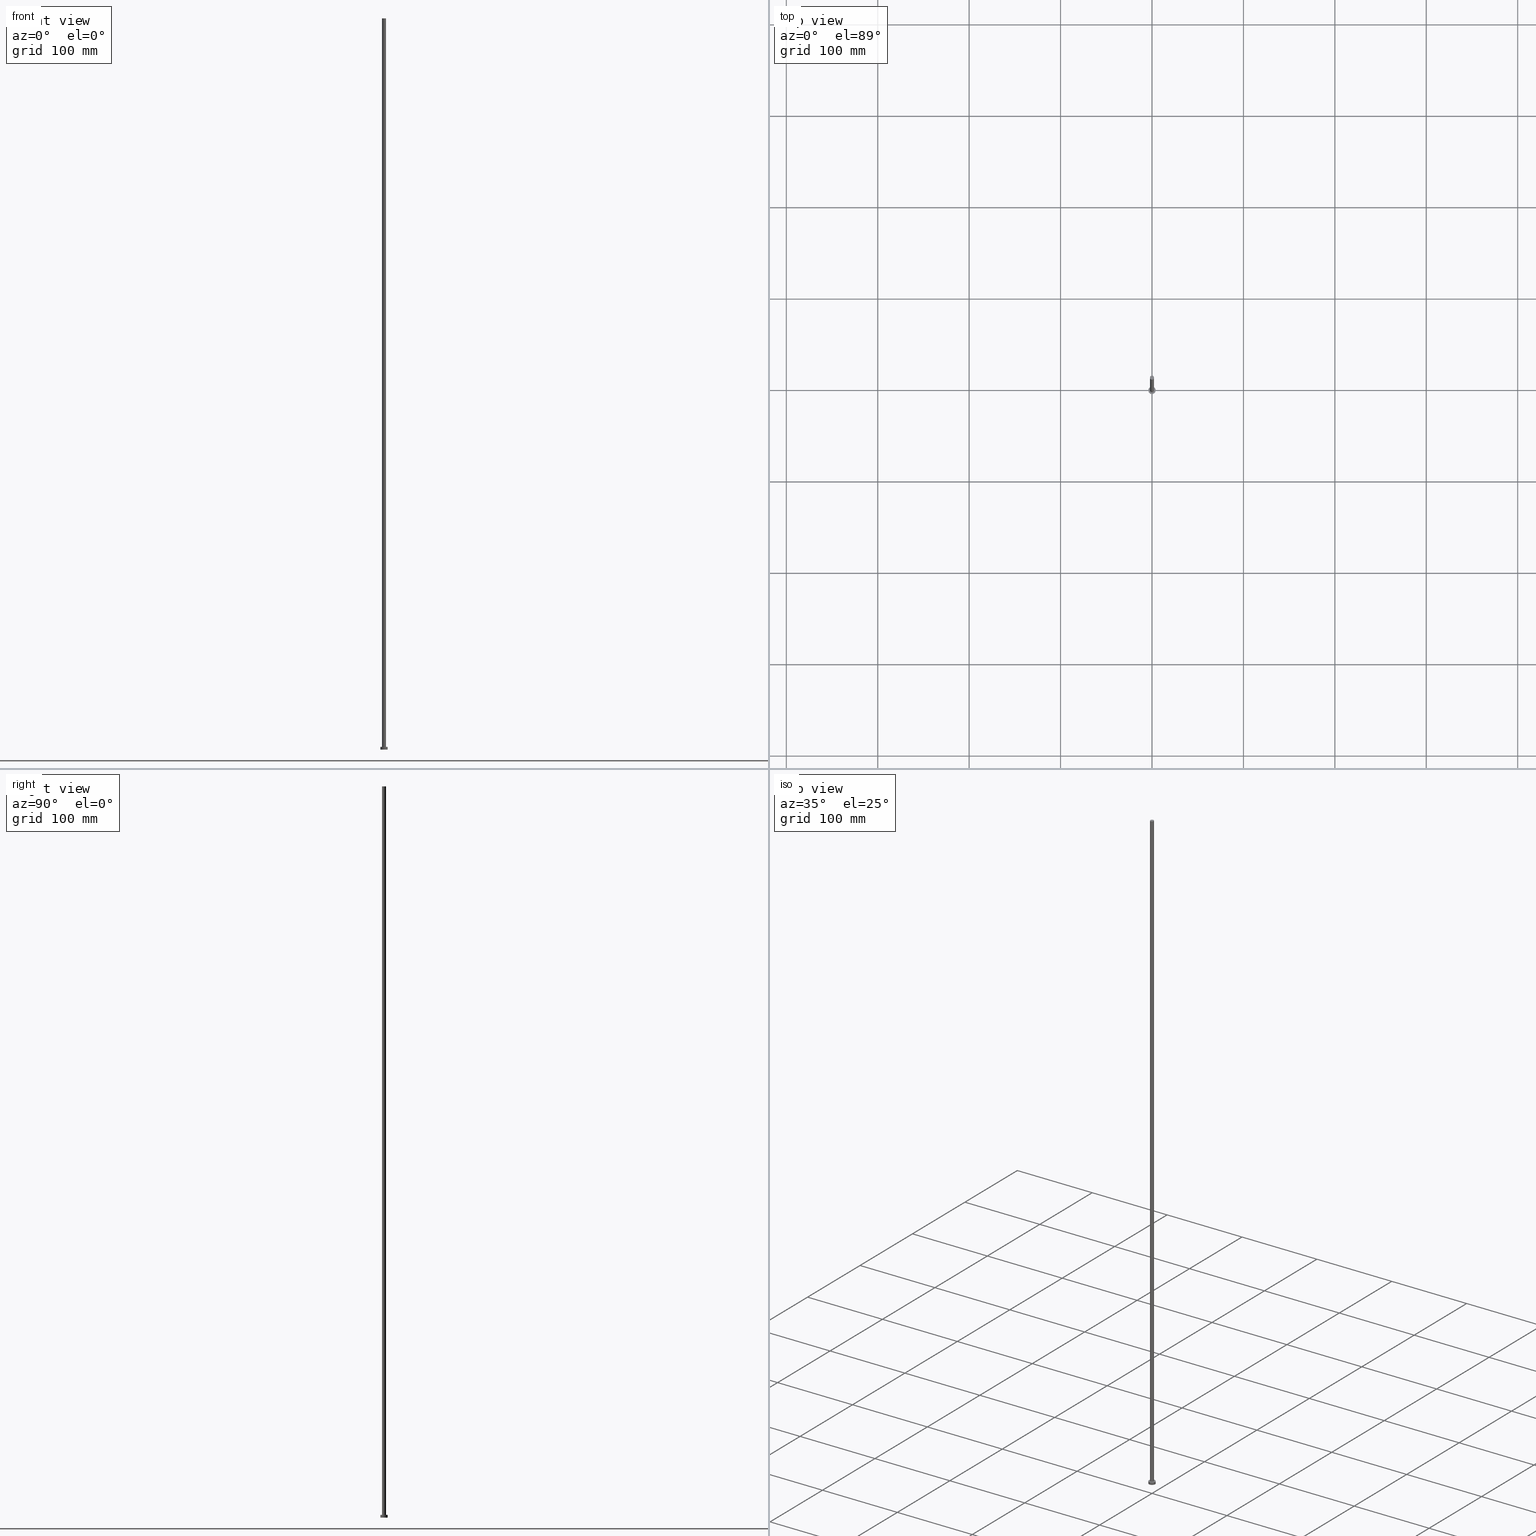
[diagram: canonical four-view strip — front | top / right | iso, engineering-drawing reading convention]
A machine part, canonical four-view strip (front | top / right | iso — engineering-drawing reading convention). The complete STEP part file that produces these views, byte-faithful:
ISO-10303-21;
HEADER;
FILE_DESCRIPTION (( 'STEP AP203' ),
    '1' );
FILE_NAME ('bdc4.STEP',
    '2023-02-12T12:32:07',
    ( '' ),
    ( '' ),
    'SwSTEP 2.0',
    'SolidWorks 2019',
    '' );
FILE_SCHEMA (( 'CONFIG_CONTROL_DESIGN' ));
ENDSEC;

DATA;
#1 = LINE ( 'NONE', #220, #40 ) ;
#2 = EDGE_LOOP ( 'NONE', ( #212, #138 ) ) ;
#3 = COORDINATED_UNIVERSAL_TIME_OFFSET ( 1, 0, .AHEAD. ) ;
#4 = CARTESIAN_POINT ( 'NONE',  ( 2.250000000000000000, 2.755455298081544285E-16, 800.0000000000000000 ) ) ;
#5 = ADVANCED_FACE ( 'NONE', ( #31 ), #196, .T. ) ;
#6 = DIRECTION ( 'NONE',  ( 0.000000000000000000, 0.000000000000000000, 1.000000000000000000 ) ) ;
#7 = CIRCLE ( 'NONE', #174, 2.250000000000000000 ) ;
#8 = CC_DESIGN_APPROVAL ( #57, ( #98 ) ) ;
#9 = CARTESIAN_POINT ( 'NONE',  ( 0.000000000000000000, 0.000000000000000000, 0.000000000000000000 ) ) ;
#10 = EDGE_LOOP ( 'NONE', ( #19, #83, #251, #131 ) ) ;
#11 = CALENDAR_DATE ( 2023, 12, 2 ) ;
#12 = ADVANCED_FACE ( 'NONE', ( #254 ), #32, .T. ) ;
#13 = CARTESIAN_POINT ( 'NONE',  ( 0.000000000000000000, 0.000000000000000000, 3.000000000000000000 ) ) ;
#14 = CARTESIAN_POINT ( 'NONE',  ( 2.250000000000000000, 2.755455298081544285E-16, 800.0000000000000000 ) ) ;
#15 = MECHANICAL_CONTEXT ( 'NONE', #64, 'mechanical' ) ;
#16 = SHAPE_DEFINITION_REPRESENTATION ( #143, #69 ) ;
#17 = FACE_OUTER_BOUND ( 'NONE', #134, .T. ) ;
#18 = ORIENTED_EDGE ( 'NONE', *, *, #49, .F. ) ;
#19 = ORIENTED_EDGE ( 'NONE', *, *, #189, .F. ) ;
#20 = CARTESIAN_POINT ( 'NONE',  ( 0.000000000000000000, 0.000000000000000000, 800.0000000000000000 ) ) ;
#21 = CIRCLE ( 'NONE', #213, 4.000000000000000000 ) ;
#22 = APPROVAL_PERSON_ORGANIZATION ( #152, #57, #53 ) ;
#23 = APPLICATION_PROTOCOL_DEFINITION ( 'international standard', 'config_control_design', 1994, #72 ) ;
#24 = EDGE_CURVE ( 'NONE', #122, #146, #1, .T. ) ;
#25 = VECTOR ( 'NONE', #223, 1000.000000000000000 ) ;
#26 = DIRECTION ( 'NONE',  ( -0.000000000000000000, -0.000000000000000000, -1.000000000000000000 ) ) ;
#27 = DIRECTION ( 'NONE',  ( 1.000000000000000000, 0.000000000000000000, 0.000000000000000000 ) ) ;
#28 = APPROVAL_DATE_TIME ( #193, #29 ) ;
#29 = APPROVAL ( #230, 'NEUR�EN�' ) ;
#30 = DIRECTION ( 'NONE',  ( 1.000000000000000000, 0.000000000000000000, 0.000000000000000000 ) ) ;
#31 = FACE_OUTER_BOUND ( 'NONE', #2, .T. ) ;
#32 = CYLINDRICAL_SURFACE ( 'NONE', #126, 2.250000000000000000 ) ;
#33 = APPROVAL_DATE_TIME ( #165, #179 ) ;
#34 = ADVANCED_FACE ( 'NONE', ( #166 ), #108, .T. ) ;
#35 = VERTEX_POINT ( 'NONE', #14 ) ;
#36 = CYLINDRICAL_SURFACE ( 'NONE', #169, 2.250000000000000000 ) ;
#37 = EDGE_CURVE ( 'NONE', #146, #127, #21, .T. ) ;
#38 = PERSON_AND_ORGANIZATION_ROLE ( 'design_owner' ) ;
#39 = DIRECTION ( 'NONE',  ( 0.000000000000000000, 0.000000000000000000, 1.000000000000000000 ) ) ;
#40 = VECTOR ( 'NONE', #232, 1000.000000000000000 ) ;
#41 = CC_DESIGN_SECURITY_CLASSIFICATION ( #158, ( #204 ) ) ;
#42 = LINE ( 'NONE', #123, #25 ) ;
#43 = PERSON ( 'NEUR�EN�', 'NEUR�EN�', 'NEUR�EN�', ('NEUR�EN�'), ('NEUR�EN�'), ('NEUR�EN�') ) ;
#44 = ADVANCED_FACE ( 'NONE', ( #154, #17 ), #187, .T. ) ;
#45 = ORIENTED_EDGE ( 'NONE', *, *, #207, .F. ) ;
#46 = CARTESIAN_POINT ( 'NONE',  ( 0.000000000000000000, 0.000000000000000000, 3.000000000000000000 ) ) ;
#47 = ORGANIZATION ( 'NEUR�EN�', 'NEUR�EN�', '' ) ;
#48 = DIRECTION ( 'NONE',  ( -1.000000000000000000, 0.000000000000000000, 0.000000000000000000 ) ) ;
#49 = EDGE_CURVE ( 'NONE', #122, #205, #121, .T. ) ;
#50 = DIRECTION ( 'NONE',  ( 1.000000000000000000, 0.000000000000000000, 0.000000000000000000 ) ) ;
#51 = ORIENTED_EDGE ( 'NONE', *, *, #49, .T. ) ;
#52 = APPROVAL_DATE_TIME ( #71, #57 ) ;
#53 = APPROVAL_ROLE ( '' ) ;
#54 = CIRCLE ( 'NONE', #199, 2.250000000000000000 ) ;
#55 = EDGE_CURVE ( 'NONE', #127, #146, #198, .T. ) ;
#56 = CC_DESIGN_APPROVAL ( #179, ( #204 ) ) ;
#57 = APPROVAL ( #225, 'NEUR�EN�' ) ;
#58 = PERSON_AND_ORGANIZATION_ROLE ( 'creator' ) ;
#59 = DIRECTION ( 'NONE',  ( 1.000000000000000000, 0.000000000000000000, 0.000000000000000000 ) ) ;
#60 = LOCAL_TIME ( 13, 32, 7.000000000000000000, #109 ) ;
#61 = DIRECTION ( 'NONE',  ( 0.000000000000000000, 0.000000000000000000, 1.000000000000000000 ) ) ;
#62 = CARTESIAN_POINT ( 'NONE',  ( 4.000000000000000000, 4.898587196589412829E-16, 0.000000000000000000 ) ) ;
#63 = DIRECTION ( 'NONE',  ( -0.000000000000000000, -0.000000000000000000, -1.000000000000000000 ) ) ;
#64 = APPLICATION_CONTEXT ( 'configuration controlled 3d designs of mechanical parts and assemblies' ) ;
#65 = ADVANCED_FACE ( 'NONE', ( #101 ), #36, .T. ) ;
#66 = PERSON_AND_ORGANIZATION ( #43, #47 ) ;
#67 = AXIS2_PLACEMENT_3D ( 'NONE', #209, #26, #224 ) ;
#68 = ORIENTED_EDGE ( 'NONE', *, *, #117, .F. ) ;
#69 = ADVANCED_BREP_SHAPE_REPRESENTATION ( 'bdc4', ( #177, #208 ), #170 ) ;
#70 = PLANE ( 'NONE',  #93 ) ;
#71 = DATE_AND_TIME ( #11, #228 ) ;
#72 = APPLICATION_CONTEXT ( 'configuration controlled 3d designs of mechanical parts and assemblies' ) ;
#73 = CALENDAR_DATE ( 2023, 12, 2 ) ;
#74 = DIRECTION ( 'NONE',  ( 0.000000000000000000, 0.000000000000000000, 1.000000000000000000 ) ) ;
#75 = DIRECTION ( 'NONE',  ( 0.000000000000000000, 0.000000000000000000, 1.000000000000000000 ) ) ;
#76 = LOCAL_TIME ( 13, 32, 7.000000000000000000, #95 ) ;
#77 = CC_DESIGN_PERSON_AND_ORGANIZATION_ASSIGNMENT ( #111, #211, ( #158 ) ) ;
#78 = AXIS2_PLACEMENT_3D ( 'NONE', #192, #74, #157 ) ;
#79 = CYLINDRICAL_SURFACE ( 'NONE', #156, 4.000000000000000000 ) ;
#80 = PRODUCT_RELATED_PRODUCT_CATEGORY ( 'detail', '', ( #129 ) ) ;
#81 = ORIENTED_EDGE ( 'NONE', *, *, #24, .T. ) ;
#82 = DIRECTION ( 'NONE',  ( -0.000000000000000000, -0.000000000000000000, -1.000000000000000000 ) ) ;
#83 = ORIENTED_EDGE ( 'NONE', *, *, #125, .T. ) ;
#84 = AXIS2_PLACEMENT_3D ( 'NONE', #178, #61, #160 ) ;
#85 = CARTESIAN_POINT ( 'NONE',  ( 0.000000000000000000, 0.000000000000000000, 0.000000000000000000 ) ) ;
#86 = EDGE_LOOP ( 'NONE', ( #140, #124, #235, #242 ) ) ;
#87 = APPLICATION_PROTOCOL_DEFINITION ( 'international standard', 'config_control_design', 1994, #64 ) ;
#88 = DESIGN_CONTEXT ( 'detailed design', #72, 'design' ) ;
#89 = EDGE_LOOP ( 'NONE', ( #68, #219, #222, #197 ) ) ;
#90 = CALENDAR_DATE ( 2023, 12, 2 ) ;
#91 =( LENGTH_UNIT ( ) NAMED_UNIT ( * ) SI_UNIT ( .MILLI., .METRE. ) );
#92 = DATE_TIME_ROLE ( 'classification_date' ) ;
#93 = AXIS2_PLACEMENT_3D ( 'NONE', #85, #105, #184 ) ;
#94 = APPROVAL_PERSON_ORGANIZATION ( #231, #29, #173 ) ;
#95 = COORDINATED_UNIVERSAL_TIME_OFFSET ( 1, 0, .AHEAD. ) ;
#96 = DIRECTION ( 'NONE',  ( 0.000000000000000000, 0.000000000000000000, 1.000000000000000000 ) ) ;
#97 = CARTESIAN_POINT ( 'NONE',  ( 0.000000000000000000, 0.000000000000000000, 0.000000000000000000 ) ) ;
#98 = PRODUCT_DEFINITION ( 'NEZN�M�', '', #204, #88 ) ;
#99 = DIRECTION ( 'NONE',  ( 0.000000000000000000, 0.000000000000000000, 1.000000000000000000 ) ) ;
#100 = DIRECTION ( 'NONE',  ( 1.000000000000000000, 0.000000000000000000, 0.000000000000000000 ) ) ;
#101 = FACE_OUTER_BOUND ( 'NONE', #89, .T. ) ;
#102 = CALENDAR_DATE ( 2023, 12, 2 ) ;
#103 = CARTESIAN_POINT ( 'NONE',  ( 0.000000000000000000, 0.000000000000000000, 800.0000000000000000 ) ) ;
#104 = APPROVAL_PERSON_ORGANIZATION ( #66, #179, #216 ) ;
#105 = DIRECTION ( 'NONE',  ( 0.000000000000000000, 0.000000000000000000, 1.000000000000000000 ) ) ;
#106 = DIRECTION ( 'NONE',  ( 0.000000000000000000, 0.000000000000000000, 1.000000000000000000 ) ) ;
#107 = CC_DESIGN_APPROVAL ( #29, ( #158 ) ) ;
#108 = CYLINDRICAL_SURFACE ( 'NONE', #67, 4.000000000000000000 ) ;
#109 = COORDINATED_UNIVERSAL_TIME_OFFSET ( 1, 0, .AHEAD. ) ;
#110 = FACE_OUTER_BOUND ( 'NONE', #149, .T. ) ;
#111 = PERSON_AND_ORGANIZATION ( #43, #47 ) ;
#112 = CC_DESIGN_DATE_AND_TIME_ASSIGNMENT ( #113, #92, ( #158 ) ) ;
#113 = DATE_AND_TIME ( #90, #141 ) ;
#114 = CARTESIAN_POINT ( 'NONE',  ( 4.000000000000000000, 4.898587196589412829E-16, 3.000000000000000000 ) ) ;
#115 = COORDINATED_UNIVERSAL_TIME_OFFSET ( 1, 0, .AHEAD. ) ;
#116 = ORIENTED_EDGE ( 'NONE', *, *, #125, .F. ) ;
#117 = EDGE_CURVE ( 'NONE', #35, #151, #144, .T. ) ;
#118 = VERTEX_POINT ( 'NONE', #120 ) ;
#119 = CARTESIAN_POINT ( 'NONE',  ( 0.000000000000000000, 0.000000000000000000, 3.000000000000000000 ) ) ;
#120 = CARTESIAN_POINT ( 'NONE',  ( -2.250000000000000000, 0.000000000000000000, 3.000000000000000000 ) ) ;
#121 = CIRCLE ( 'NONE', #244, 4.000000000000000000 ) ;
#122 = VERTEX_POINT ( 'NONE', #168 ) ;
#123 = CARTESIAN_POINT ( 'NONE',  ( -2.250000000000000000, 0.000000000000000000, 800.0000000000000000 ) ) ;
#124 = ORIENTED_EDGE ( 'NONE', *, *, #117, .T. ) ;
#125 = EDGE_CURVE ( 'NONE', #205, #127, #240, .T. ) ;
#126 = AXIS2_PLACEMENT_3D ( 'NONE', #103, #163, #236 ) ;
#127 = VERTEX_POINT ( 'NONE', #62 ) ;
#128 = DATE_AND_TIME ( #73, #185 ) ;
#129 = PRODUCT ( 'bdc4', 'bdc4', '', ( #15 ) ) ;
#130 = CC_DESIGN_PERSON_AND_ORGANIZATION_ASSIGNMENT ( #136, #191, ( #204 ) ) ;
#131 = ORIENTED_EDGE ( 'NONE', *, *, #24, .F. ) ;
#132 = PERSON_AND_ORGANIZATION ( #43, #47 ) ;
#133 = COORDINATED_UNIVERSAL_TIME_OFFSET ( 1, 0, .AHEAD. ) ;
#134 = EDGE_LOOP ( 'NONE', ( #51, #241 ) ) ;
#135 = AXIS2_PLACEMENT_3D ( 'NONE', #97, #99, #59 ) ;
#136 = PERSON_AND_ORGANIZATION ( #43, #47 ) ;
#137 = DIRECTION ( 'NONE',  ( -0.000000000000000000, -0.000000000000000000, -1.000000000000000000 ) ) ;
#138 = ORIENTED_EDGE ( 'NONE', *, *, #195, .T. ) ;
#139 = CARTESIAN_POINT ( 'NONE',  ( 0.000000000000000000, 0.000000000000000000, 800.0000000000000000 ) ) ;
#140 = ORIENTED_EDGE ( 'NONE', *, *, #195, .F. ) ;
#141 = LOCAL_TIME ( 13, 32, 7.000000000000000000, #115 ) ;
#142 = DIRECTION ( 'NONE',  ( -1.000000000000000000, 0.000000000000000000, 0.000000000000000000 ) ) ;
#143 = PRODUCT_DEFINITION_SHAPE ( 'NONE', 'NONE',  #98 ) ;
#144 = LINE ( 'NONE', #4, #162 ) ;
#145 = CC_DESIGN_PERSON_AND_ORGANIZATION_ASSIGNMENT ( #217, #38, ( #129 ) ) ;
#146 = VERTEX_POINT ( 'NONE', #238 ) ;
#147 = DIRECTION ( 'NONE',  ( -0.000000000000000000, -0.000000000000000000, -1.000000000000000000 ) ) ;
#148 = PERSON_AND_ORGANIZATION_ROLE ( 'creator' ) ;
#149 = EDGE_LOOP ( 'NONE', ( #188, #239 ) ) ;
#150 =( NAMED_UNIT ( * ) PLANE_ANGLE_UNIT ( ) SI_UNIT ( $, .RADIAN. ) );
#151 = VERTEX_POINT ( 'NONE', #181 ) ;
#152 = PERSON_AND_ORGANIZATION ( #43, #47 ) ;
#153 = ADVANCED_FACE ( 'NONE', ( #255 ), #79, .T. ) ;
#154 = FACE_BOUND ( 'NONE', #248, .T. ) ;
#155 = DATE_TIME_ROLE ( 'creation_date' ) ;
#156 = AXIS2_PLACEMENT_3D ( 'NONE', #237, #63, #142 ) ;
#157 = DIRECTION ( 'NONE',  ( 1.000000000000000000, 0.000000000000000000, -0.000000000000000000 ) ) ;
#158 = SECURITY_CLASSIFICATION ( '', '', #252 ) ;
#159 = DIRECTION ( 'NONE',  ( 1.000000000000000000, 0.000000000000000000, 0.000000000000000000 ) ) ;
#160 = DIRECTION ( 'NONE',  ( 1.000000000000000000, 0.000000000000000000, 0.000000000000000000 ) ) ;
#161 = CIRCLE ( 'NONE', #202, 2.250000000000000000 ) ;
#162 = VECTOR ( 'NONE', #82, 1000.000000000000000 ) ;
#163 = DIRECTION ( 'NONE',  ( -0.000000000000000000, -0.000000000000000000, -1.000000000000000000 ) ) ;
#164 = EDGE_CURVE ( 'NONE', #218, #118, #42, .T. ) ;
#165 = DATE_AND_TIME ( #102, #76 ) ;
#166 = FACE_OUTER_BOUND ( 'NONE', #249, .T. ) ;
#167 = CIRCLE ( 'NONE', #84, 2.250000000000000000 ) ;
#168 = CARTESIAN_POINT ( 'NONE',  ( -4.000000000000000000, 0.000000000000000000, 3.000000000000000000 ) ) ;
#169 = AXIS2_PLACEMENT_3D ( 'NONE', #20, #137, #48 ) ;
#170 =( GEOMETRIC_REPRESENTATION_CONTEXT ( 3 ) GLOBAL_UNCERTAINTY_ASSIGNED_CONTEXT ( ( #201 ) ) GLOBAL_UNIT_ASSIGNED_CONTEXT ( ( #91, #150, #250 ) ) REPRESENTATION_CONTEXT ( 'NONE', 'WORKASPACE' ) );
#171 = ORIENTED_EDGE ( 'NONE', *, *, #37, .T. ) ;
#172 = CLOSED_SHELL ( 'NONE', ( #12, #153, #34, #44, #221, #65, #5 ) ) ;
#173 = APPROVAL_ROLE ( '' ) ;
#174 = AXIS2_PLACEMENT_3D ( 'NONE', #119, #210, #190 ) ;
#175 = CC_DESIGN_PERSON_AND_ORGANIZATION_ASSIGNMENT ( #176, #58, ( #204 ) ) ;
#176 = PERSON_AND_ORGANIZATION ( #43, #47 ) ;
#177 = MANIFOLD_SOLID_BREP ( 'P�idat vysunut�m3', #172 ) ;
#178 = CARTESIAN_POINT ( 'NONE',  ( 0.000000000000000000, 0.000000000000000000, 3.000000000000000000 ) ) ;
#179 = APPROVAL ( #245, 'NEUR�EN�' ) ;
#180 = DIRECTION ( 'NONE',  ( 0.000000000000000000, 0.000000000000000000, 1.000000000000000000 ) ) ;
#181 = CARTESIAN_POINT ( 'NONE',  ( 2.250000000000000000, 2.755455298081544285E-16, 3.000000000000000000 ) ) ;
#182 = CIRCLE ( 'NONE', #243, 4.000000000000000000 ) ;
#183 = CC_DESIGN_DATE_AND_TIME_ASSIGNMENT ( #128, #155, ( #98 ) ) ;
#184 = DIRECTION ( 'NONE',  ( 1.000000000000000000, 0.000000000000000000, -0.000000000000000000 ) ) ;
#185 = LOCAL_TIME ( 13, 32, 7.000000000000000000, #3 ) ;
#186 = CARTESIAN_POINT ( 'NONE',  ( 0.000000000000000000, 0.000000000000000000, 0.000000000000000000 ) ) ;
#187 = PLANE ( 'NONE',  #203 ) ;
#188 = ORIENTED_EDGE ( 'NONE', *, *, #37, .F. ) ;
#189 = EDGE_CURVE ( 'NONE', #205, #122, #182, .T. ) ;
#190 = DIRECTION ( 'NONE',  ( 1.000000000000000000, 0.000000000000000000, 0.000000000000000000 ) ) ;
#191 = PERSON_AND_ORGANIZATION_ROLE ( 'design_supplier' ) ;
#192 = CARTESIAN_POINT ( 'NONE',  ( 0.000000000000000000, 0.000000000000000000, 800.0000000000000000 ) ) ;
#193 = DATE_AND_TIME ( #233, #60 ) ;
#194 = CARTESIAN_POINT ( 'NONE',  ( 0.000000000000000000, 0.000000000000000000, 3.000000000000000000 ) ) ;
#195 = EDGE_CURVE ( 'NONE', #35, #218, #161, .T. ) ;
#196 = PLANE ( 'NONE',  #78 ) ;
#197 = ORIENTED_EDGE ( 'NONE', *, *, #214, .T. ) ;
#198 = CIRCLE ( 'NONE', #135, 4.000000000000000000 ) ;
#199 = AXIS2_PLACEMENT_3D ( 'NONE', #226, #6, #50 ) ;
#200 = DIRECTION ( 'NONE',  ( 1.000000000000000000, 0.000000000000000000, -0.000000000000000000 ) ) ;
#201 = UNCERTAINTY_MEASURE_WITH_UNIT (LENGTH_MEASURE( 1.000000000000000082E-05 ), #91, 'distance_accuracy_value', 'NONE');
#202 = AXIS2_PLACEMENT_3D ( 'NONE', #139, #96, #234 ) ;
#203 = AXIS2_PLACEMENT_3D ( 'NONE', #13, #180, #200 ) ;
#204 = PRODUCT_DEFINITION_FORMATION_WITH_SPECIFIED_SOURCE ( 'LIBOVOLN�', '', #129, .NOT_KNOWN. ) ;
#205 = VERTEX_POINT ( 'NONE', #114 ) ;
#206 = CARTESIAN_POINT ( 'NONE',  ( 4.000000000000000000, 4.898587196589412829E-16, 3.000000000000000000 ) ) ;
#207 = EDGE_CURVE ( 'NONE', #151, #118, #167, .T. ) ;
#208 = AXIS2_PLACEMENT_3D ( 'NONE', #186, #106, #27 ) ;
#209 = CARTESIAN_POINT ( 'NONE',  ( 0.000000000000000000, 0.000000000000000000, 3.000000000000000000 ) ) ;
#210 = DIRECTION ( 'NONE',  ( 0.000000000000000000, 0.000000000000000000, 1.000000000000000000 ) ) ;
#211 = PERSON_AND_ORGANIZATION_ROLE ( 'classification_officer' ) ;
#212 = ORIENTED_EDGE ( 'NONE', *, *, #227, .T. ) ;
#213 = AXIS2_PLACEMENT_3D ( 'NONE', #9, #246, #30 ) ;
#214 = EDGE_CURVE ( 'NONE', #118, #151, #7, .T. ) ;
#215 = CC_DESIGN_PERSON_AND_ORGANIZATION_ASSIGNMENT ( #132, #148, ( #98 ) ) ;
#216 = APPROVAL_ROLE ( '' ) ;
#217 = PERSON_AND_ORGANIZATION ( #43, #47 ) ;
#218 = VERTEX_POINT ( 'NONE', #247 ) ;
#219 = ORIENTED_EDGE ( 'NONE', *, *, #227, .F. ) ;
#220 = CARTESIAN_POINT ( 'NONE',  ( -4.000000000000000000, 0.000000000000000000, 3.000000000000000000 ) ) ;
#221 = ADVANCED_FACE ( 'NONE', ( #110 ), #70, .F. ) ;
#222 = ORIENTED_EDGE ( 'NONE', *, *, #164, .T. ) ;
#223 = DIRECTION ( 'NONE',  ( -0.000000000000000000, -0.000000000000000000, -1.000000000000000000 ) ) ;
#224 = DIRECTION ( 'NONE',  ( -1.000000000000000000, 0.000000000000000000, 0.000000000000000000 ) ) ;
#225 = APPROVAL_STATUS ( 'not_yet_approved' ) ;
#226 = CARTESIAN_POINT ( 'NONE',  ( 0.000000000000000000, 0.000000000000000000, 800.0000000000000000 ) ) ;
#227 = EDGE_CURVE ( 'NONE', #218, #35, #54, .T. ) ;
#228 = LOCAL_TIME ( 13, 32, 7.000000000000000000, #133 ) ;
#229 = ORIENTED_EDGE ( 'NONE', *, *, #214, .F. ) ;
#230 = APPROVAL_STATUS ( 'not_yet_approved' ) ;
#231 = PERSON_AND_ORGANIZATION ( #43, #47 ) ;
#232 = DIRECTION ( 'NONE',  ( -0.000000000000000000, -0.000000000000000000, -1.000000000000000000 ) ) ;
#233 = CALENDAR_DATE ( 2023, 12, 2 ) ;
#234 = DIRECTION ( 'NONE',  ( 1.000000000000000000, 0.000000000000000000, 0.000000000000000000 ) ) ;
#235 = ORIENTED_EDGE ( 'NONE', *, *, #207, .T. ) ;
#236 = DIRECTION ( 'NONE',  ( -1.000000000000000000, 0.000000000000000000, 0.000000000000000000 ) ) ;
#237 = CARTESIAN_POINT ( 'NONE',  ( 0.000000000000000000, 0.000000000000000000, 3.000000000000000000 ) ) ;
#238 = CARTESIAN_POINT ( 'NONE',  ( -4.000000000000000000, 0.000000000000000000, 0.000000000000000000 ) ) ;
#239 = ORIENTED_EDGE ( 'NONE', *, *, #55, .F. ) ;
#240 = LINE ( 'NONE', #206, #253 ) ;
#241 = ORIENTED_EDGE ( 'NONE', *, *, #189, .T. ) ;
#242 = ORIENTED_EDGE ( 'NONE', *, *, #164, .F. ) ;
#243 = AXIS2_PLACEMENT_3D ( 'NONE', #46, #39, #100 ) ;
#244 = AXIS2_PLACEMENT_3D ( 'NONE', #194, #75, #159 ) ;
#245 = APPROVAL_STATUS ( 'not_yet_approved' ) ;
#246 = DIRECTION ( 'NONE',  ( 0.000000000000000000, 0.000000000000000000, 1.000000000000000000 ) ) ;
#247 = CARTESIAN_POINT ( 'NONE',  ( -2.250000000000000000, 0.000000000000000000, 800.0000000000000000 ) ) ;
#248 = EDGE_LOOP ( 'NONE', ( #229, #45 ) ) ;
#249 = EDGE_LOOP ( 'NONE', ( #116, #18, #81, #171 ) ) ;
#250 =( NAMED_UNIT ( * ) SI_UNIT ( $, .STERADIAN. ) SOLID_ANGLE_UNIT ( ) );
#251 = ORIENTED_EDGE ( 'NONE', *, *, #55, .T. ) ;
#252 = SECURITY_CLASSIFICATION_LEVEL ( 'unclassified' ) ;
#253 = VECTOR ( 'NONE', #147, 1000.000000000000000 ) ;
#254 = FACE_OUTER_BOUND ( 'NONE', #86, .T. ) ;
#255 = FACE_OUTER_BOUND ( 'NONE', #10, .T. ) ;
ENDSEC;
END-ISO-10303-21;
